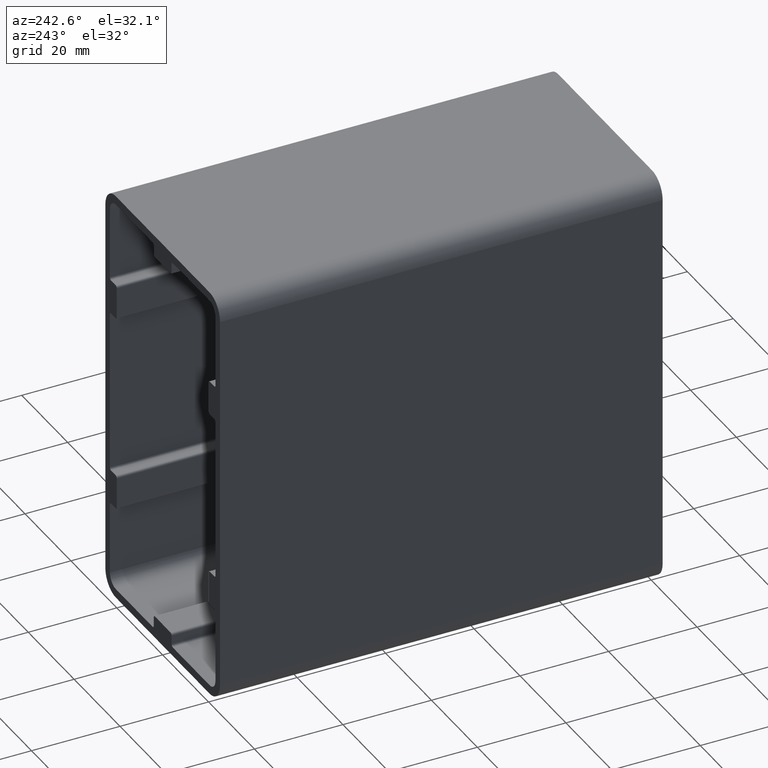
[diagram: clean part render]
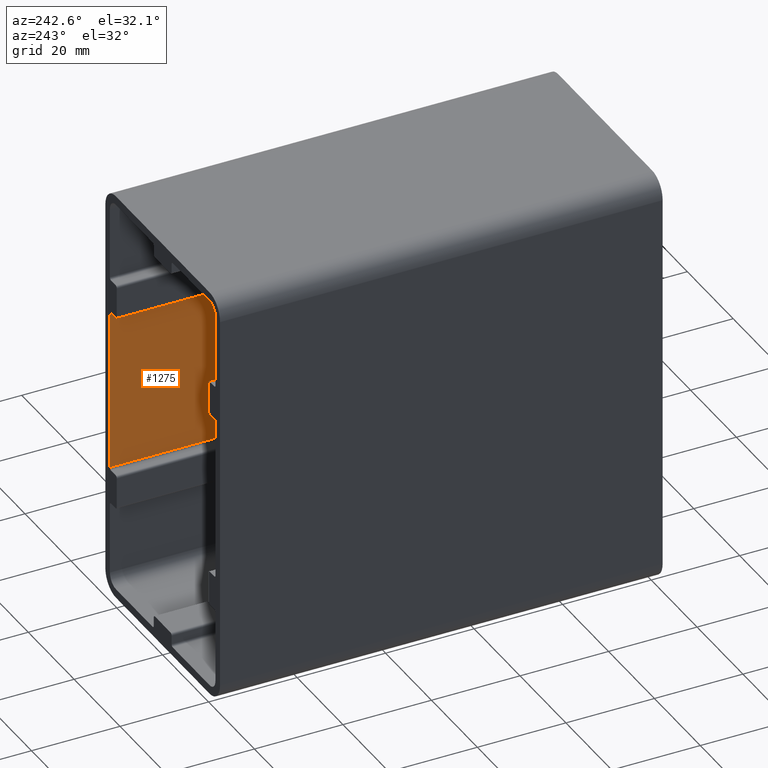
[diagram: same view with one face highlighted and labeled with its STEP entity id]
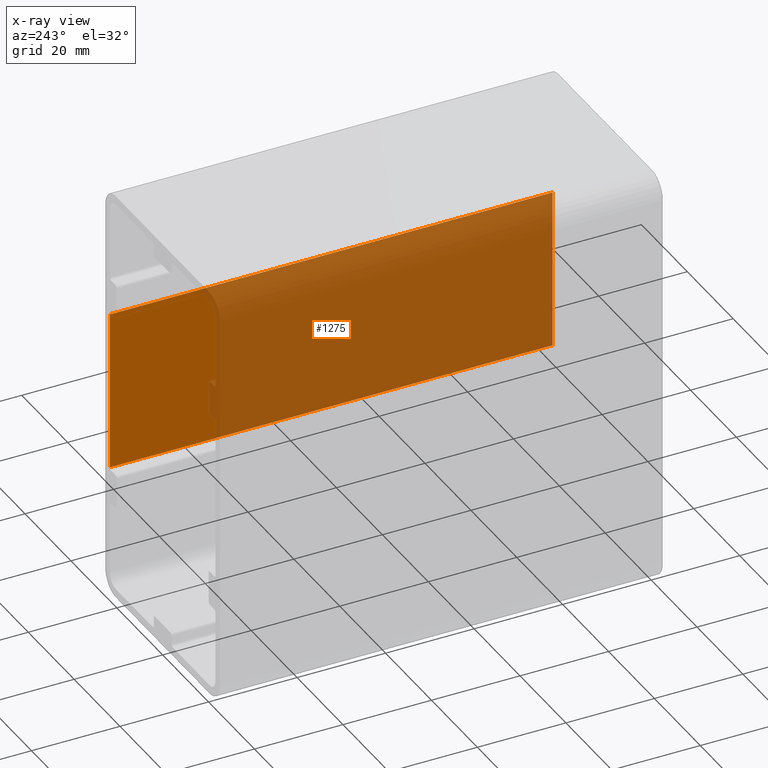
[diagram: x-ray of the same camera — body ghosted, the highlighted face saturated]
A machine part, auxiliary view. The second image highlights one B-rep face of the part: STEP entity #1275.
The next image is the same camera in x-ray: the body ghosted, the highlighted face saturated — about 77% of this face is hidden behind the body in this view.
In plain terms, the highlighted planar face has unit normal (1, 0, -0).
Its self-contained STEP definition (entity closure, byte-faithful):
#32=PLANE('',#1412);
#85=FACE_OUTER_BOUND('',#152,.T.);
#152=EDGE_LOOP('',(#1021,#1022,#1023,#1024));
#203=LINE('',#1923,#331);
#270=LINE('',#2123,#398);
#272=LINE('',#2127,#400);
#273=LINE('',#2128,#401);
#331=VECTOR('',#1517,10.);
#398=VECTOR('',#1714,10.);
#400=VECTOR('',#1718,10.);
#401=VECTOR('',#1719,10.);
#540=VERTEX_POINT('',#1920);
#541=VERTEX_POINT('',#1922);
#609=VERTEX_POINT('',#2121);
#610=VERTEX_POINT('',#2126);
#669=EDGE_CURVE('',#540,#541,#203,.T.);
#769=EDGE_CURVE('',#609,#540,#270,.T.);
#771=EDGE_CURVE('',#610,#609,#272,.T.);
#772=EDGE_CURVE('',#541,#610,#273,.T.);
#1021=ORIENTED_EDGE('',*,*,#769,.F.);
#1022=ORIENTED_EDGE('',*,*,#771,.F.);
#1023=ORIENTED_EDGE('',*,*,#772,.F.);
#1024=ORIENTED_EDGE('',*,*,#669,.F.);
#1275=ADVANCED_FACE('',(#85),#32,.F.);
#1412=AXIS2_PLACEMENT_3D('',#2125,#1716,#1717);
#1517=DIRECTION('',(-1.19378819852168E-16,0.,-1.));
#1714=DIRECTION('',(0.,-1.,0.));
#1716=DIRECTION('center_axis',(1.,0.,-1.19378819852168E-16));
#1717=DIRECTION('ref_axis',(1.19378819852168E-16,0.,1.));
#1718=DIRECTION('',(1.19378819852168E-16,0.,1.));
#1719=DIRECTION('',(0.,1.,0.));
#1920=CARTESIAN_POINT('',(23.,0.,18.1));
#1922=CARTESIAN_POINT('',(23.,0.,-18.1));
#1923=CARTESIAN_POINT('',(23.,0.,-9.29999999999999));
#2121=CARTESIAN_POINT('',(23.,100.,18.1));
#2123=CARTESIAN_POINT('',(23.,100.,18.1));
#2125=CARTESIAN_POINT('Origin',(23.,100.,-18.6));
#2126=CARTESIAN_POINT('',(23.,100.,-18.1));
#2127=CARTESIAN_POINT('',(23.,100.,-9.29999999999999));
#2128=CARTESIAN_POINT('',(23.,100.,-18.1));